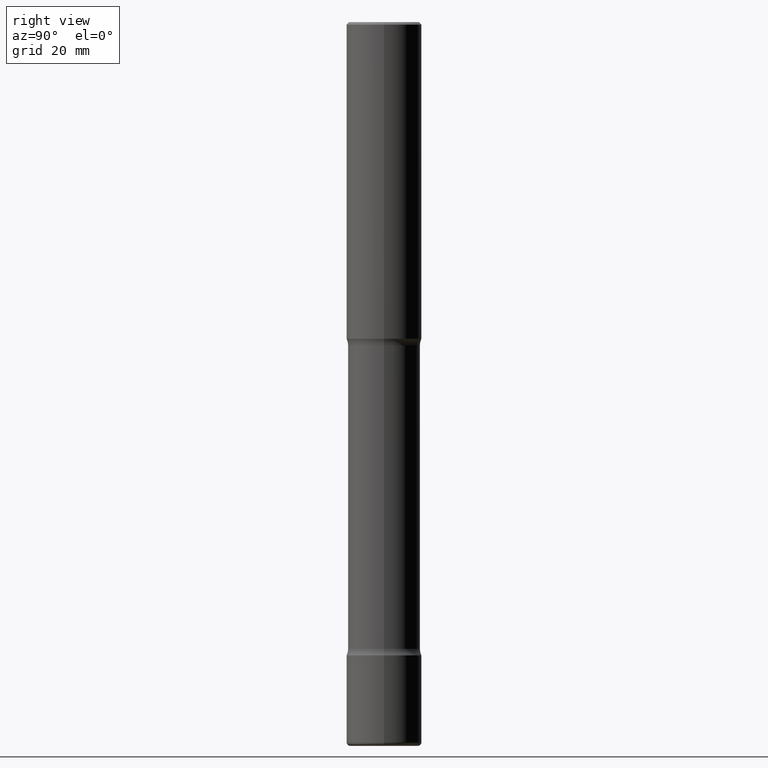
[diagram: clean part render]
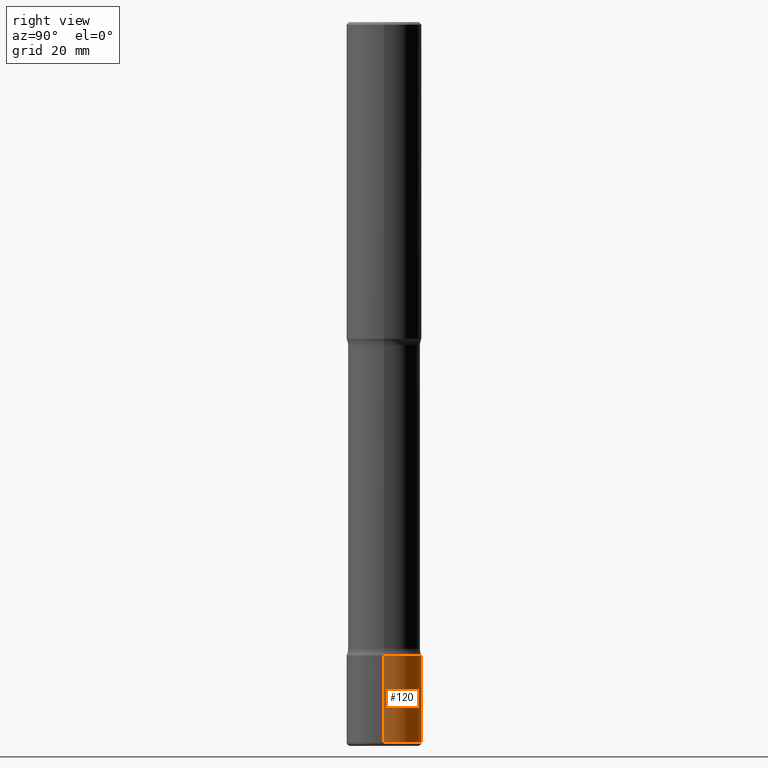
[diagram: same view with one face highlighted and labeled with its STEP entity id]
A machine part, right view. The second image highlights one B-rep face of the part: STEP entity #120.
In plain terms, the highlighted cylindrical surface (partial cylindrical patch) has radius 7.9375 mm, axis along (-0, 0, 1).
Its self-contained STEP definition (entity closure, byte-faithful):
#12 = DIRECTION ( 'NONE',  ( -2.445468806185136877E-29, 3.491481338843145188E-15, 1.000000000000000000 ) ) ;
#14 = EDGE_CURVE ( 'NONE', #407, #409, #516, .T. ) ;
#19 = FACE_OUTER_BOUND ( 'NONE', #482, .T. ) ;
#50 = VERTEX_POINT ( 'NONE', #193 ) ;
#54 = AXIS2_PLACEMENT_3D ( 'NONE', #319, #202, #83 ) ;
#66 = ORIENTED_EDGE ( 'NONE', *, *, #180, .T. ) ;
#71 = CIRCLE ( 'NONE', #417, 0.3125000000000000000 ) ;
#76 = ORIENTED_EDGE ( 'NONE', *, *, #14, .F. ) ;
#83 = DIRECTION ( 'NONE',  ( 1.000000000000000000, -6.982962677686266711E-15, 4.876176775795936353E-29 ) ) ;
#119 = DIRECTION ( 'NONE',  ( -2.445468806185136877E-29, 3.491481338843145188E-15, 1.000000000000000000 ) ) ;
#120 = ADVANCED_FACE ( 'NONE', ( #19 ), #367, .T. ) ;
#161 = DIRECTION ( 'NONE',  ( 1.000000000000000000, -6.982962677686262766E-15, 0.000000000000000000 ) ) ;
#180 = EDGE_CURVE ( 'NONE', #50, #570, #759, .T. ) ;
#193 = CARTESIAN_POINT ( 'NONE',  ( -0.3125000000000001665, -1.862369754364326626E-14, -5.969999999999999751 ) ) ;
#202 = DIRECTION ( 'NONE',  ( -2.445468806185136597E-29, 3.491481338843145583E-15, 1.000000000000000000 ) ) ;
#224 = DIRECTION ( 'NONE',  ( 1.000000000000000000, -6.982962677686262766E-15, 0.000000000000000000 ) ) ;
#230 = DIRECTION ( 'NONE',  ( -2.445468806185136597E-29, 3.491481338843145583E-15, 1.000000000000000000 ) ) ;
#234 = ORIENTED_EDGE ( 'NONE', *, *, #734, .F. ) ;
#283 = AXIS2_PLACEMENT_3D ( 'NONE', #348, #230, #161 ) ;
#319 = CARTESIAN_POINT ( 'NONE',  ( 0.000000000000000000, 0.000000000000000000, 0.000000000000000000 ) ) ;
#343 = CARTESIAN_POINT ( 'NONE',  ( 1.283871123247196489E-28, -1.833027702892651007E-14, -5.249999999999999112 ) ) ;
#348 = CARTESIAN_POINT ( 'NONE',  ( 1.459944877292526494E-28, -2.084414359289357934E-14, -5.969999999999999751 ) ) ;
#367 = CYLINDRICAL_SURFACE ( 'NONE', #54, 0.3125000000000000000 ) ;
#406 = CIRCLE ( 'NONE', #283, 0.3125000000000000000 ) ;
#407 = VERTEX_POINT ( 'NONE', #549 ) ;
#409 = VERTEX_POINT ( 'NONE', #805 ) ;
#417 = AXIS2_PLACEMENT_3D ( 'NONE', #343, #599, #224 ) ;
#428 = CARTESIAN_POINT ( 'NONE',  ( 0.3125000000000000000, -2.182175836776958347E-15, 1.523805242436230075E-29 ) ) ;
#457 = CARTESIAN_POINT ( 'NONE',  ( -0.3125000000000000000, -1.736676426165973004E-14, -5.249999999999999112 ) ) ;
#467 = VECTOR ( 'NONE', #12, 39.37007874015748143 ) ;
#482 = EDGE_LOOP ( 'NONE', ( #772, #66, #234, #76 ) ) ;
#516 = LINE ( 'NONE', #428, #523 ) ;
#523 = VECTOR ( 'NONE', #119, 39.37007874015748143 ) ;
#549 = CARTESIAN_POINT ( 'NONE',  ( 0.3125000000000001665, -2.302631942967053611E-14, -5.969999999999999751 ) ) ;
#570 = VERTEX_POINT ( 'NONE', #457 ) ;
#599 = DIRECTION ( 'NONE',  ( -2.445468806185136597E-29, 3.491481338843145583E-15, 1.000000000000000000 ) ) ;
#709 = EDGE_CURVE ( 'NONE', #407, #50, #406, .T. ) ;
#734 = EDGE_CURVE ( 'NONE', #409, #570, #71, .T. ) ;
#749 = CARTESIAN_POINT ( 'NONE',  ( -0.3125000000000000000, 2.220446049250313081E-15, -1.537167215704658232E-29 ) ) ;
#759 = LINE ( 'NONE', #749, #467 ) ;
#772 = ORIENTED_EDGE ( 'NONE', *, *, #709, .T. ) ;
#805 = CARTESIAN_POINT ( 'NONE',  ( 0.3125000000000000000, -2.051245286570346684E-14, -5.249999999999999112 ) ) ;